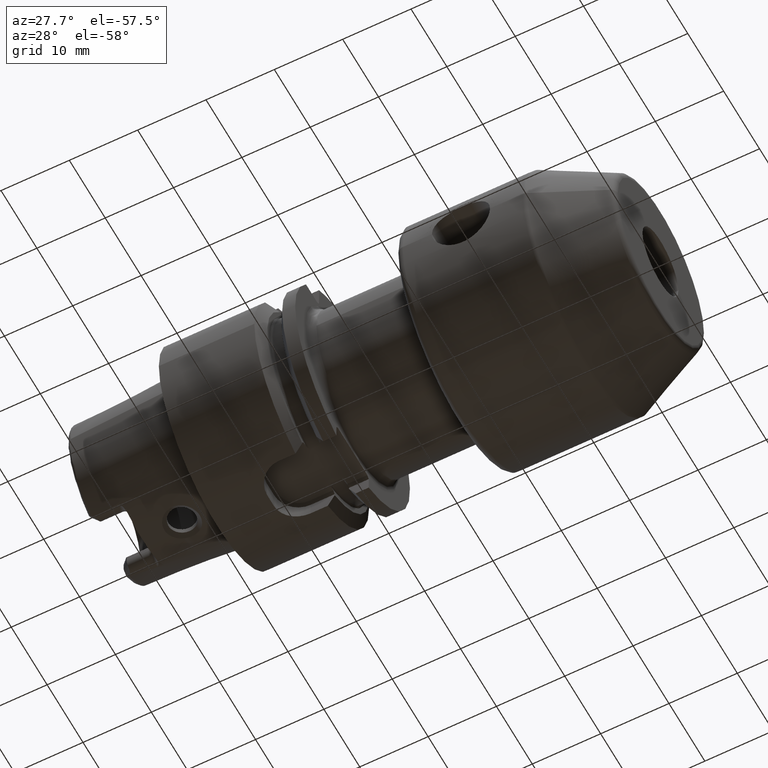
[diagram: clean part render]
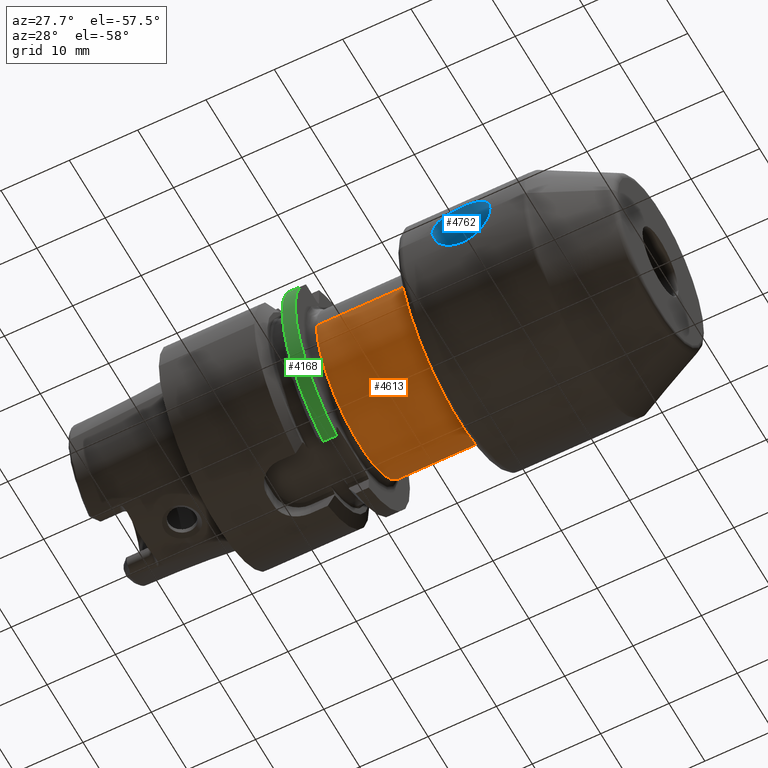
[diagram: same view with three faces highlighted in distinct colors, each labeled with its STEP entity id]
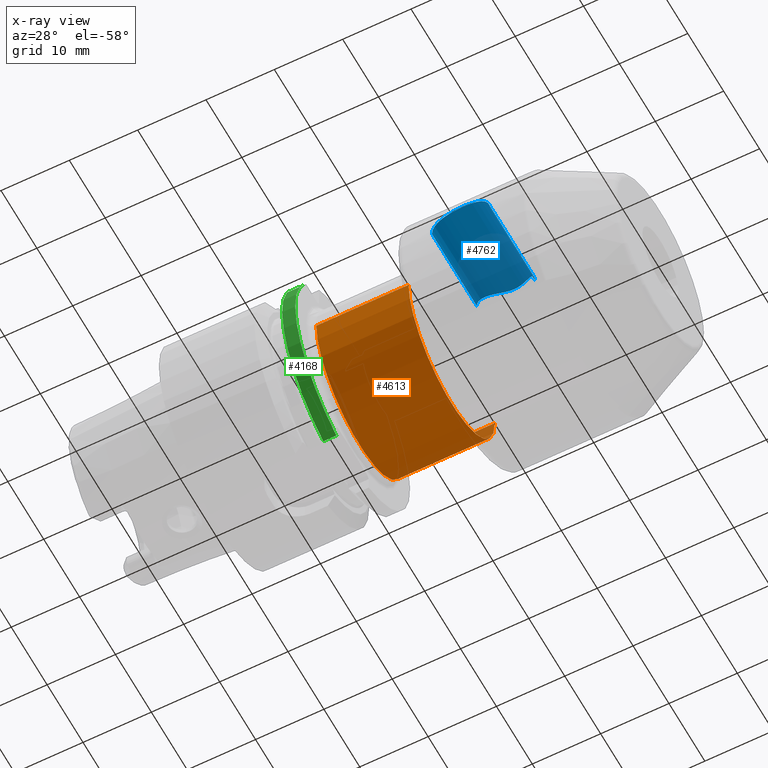
[diagram: x-ray of the same camera — body ghosted, the three highlighted faces saturated]
A machine part, auxiliary view with three faces highlighted in distinct colors.
The next image is the same camera in x-ray (body ghosted, the three faces saturated) — at least one of them is partly hidden behind the body in this view.
Their STEP definitions:

[orange] entity #4613 — the highlighted cylindrical surface (partial cylindrical patch) has radius 12 mm, axis along (1, 0, 0).
#1297=CARTESIAN_POINT('',(2.095E1,0.E0,0.E0));
#1298=DIRECTION('',(1.E0,0.E0,0.E0));
#1299=DIRECTION('',(0.E0,-1.E0,0.E0));
#1300=AXIS2_PLACEMENT_3D('',#1297,#1298,#1299);
#1326=CARTESIAN_POINT('',(3.445E1,0.E0,0.E0));
#1327=DIRECTION('',(-1.E0,0.E0,0.E0));
#1328=DIRECTION('',(0.E0,1.E0,0.E0));
#1329=AXIS2_PLACEMENT_3D('',#1326,#1327,#1328);
#1331=DIRECTION('',(1.E0,0.E0,1.113213816396E-13));
#1332=VECTOR('',#1331,1.35E1);
#1333=CARTESIAN_POINT('',(2.095E1,1.2E1,-7.247881522574E-13));
#1334=LINE('',#1333,#1332);
#1335=DIRECTION('',(1.E0,0.E0,-9.335299317120E-14));
#1336=VECTOR('',#1335,1.35E1);
#1337=CARTESIAN_POINT('',(2.095E1,-1.2E1,4.815005691993E-13));
#1338=LINE('',#1337,#1336);
#3360=CARTESIAN_POINT('',(3.445E1,1.2E1,0.E0));
#3361=CARTESIAN_POINT('',(3.445E1,-1.2E1,0.E0));
#3362=VERTEX_POINT('',#3360);
#3363=VERTEX_POINT('',#3361);
#3364=CARTESIAN_POINT('',(2.095E1,1.2E1,-7.247881522574E-13));
#3365=VERTEX_POINT('',#3364);
#3366=CARTESIAN_POINT('',(2.095E1,-1.2E1,4.815005691993E-13));
#3367=VERTEX_POINT('',#3366);
#4599=CARTESIAN_POINT('',(1.9175E1,0.E0,0.E0));
#4600=DIRECTION('',(1.E0,0.E0,0.E0));
#4601=DIRECTION('',(0.E0,-1.E0,0.E0));
#4602=AXIS2_PLACEMENT_3D('',#4599,#4600,#4601);
#4603=CYLINDRICAL_SURFACE('',#4602,1.2E1);
#4605=ORIENTED_EDGE('',*,*,#4604,.F.);
#4607=ORIENTED_EDGE('',*,*,#4606,.F.);
#4608=ORIENTED_EDGE('',*,*,#4586,.F.);
#4610=ORIENTED_EDGE('',*,*,#4609,.T.);
#4611=EDGE_LOOP('',(#4605,#4607,#4608,#4610));
#4612=FACE_OUTER_BOUND('',#4611,.F.);
#4613=ADVANCED_FACE('',(#4612),#4603,.T.);
#1301=CIRCLE('',#1300,1.2E1);
#1330=CIRCLE('',#1329,1.2E1);
#4586=EDGE_CURVE('',#3367,#3365,#1301,.T.);
#4604=EDGE_CURVE('',#3362,#3363,#1330,.T.);
#4606=EDGE_CURVE('',#3365,#3362,#1334,.T.);
#4609=EDGE_CURVE('',#3367,#3363,#1338,.T.);

[blue] entity #4762 — the highlighted cylindrical surface (edge-blend (fillet) strip) has radius 4.25 mm, axis along (0, -1, 0).
#1399=CARTESIAN_POINT('',(4.075E1,-1.75E1,0.E0));
#1400=CARTESIAN_POINT('',(4.075E1,-1.75E1,2.238200981112E-1));
#1401=CARTESIAN_POINT('',(4.078490845288E1,-1.749147352198E1,
6.649746198311E-1));
#1402=CARTESIAN_POINT('',(4.093972877032E1,-1.745452976195E1,1.313042696130E0));
#1403=CARTESIAN_POINT('',(4.119249572327E1,-1.739702710240E1,1.926565249608E0));
#1404=CARTESIAN_POINT('',(4.153753189600E1,-1.732420486610E1,2.494256760639E0));
#1405=CARTESIAN_POINT('',(4.196873025766E1,-1.724252864089E1,3.003785367397E0));
#1406=CARTESIAN_POINT('',(4.247683461268E1,-1.715976654974E1,3.441983169724E0));
#1407=CARTESIAN_POINT('',(4.305211064045E1,-1.708398085291E1,3.797439016129E0));
#1408=CARTESIAN_POINT('',(4.367481421244E1,-1.702375927884E1,4.056639453514E0));
#1409=CARTESIAN_POINT('',(4.432425499245E1,-1.698528968874E1,4.213458501650E0));
#1410=CARTESIAN_POINT('',(4.498663012564E1,-1.697174863109E1,4.267214862078E0));
#1411=CARTESIAN_POINT('',(4.564984038479E1,-1.698426344996E1,4.217558484278E0));
#1412=CARTESIAN_POINT('',(4.630022641159E1,-1.702182442350E1,4.064680258943E0));
#1413=CARTESIAN_POINT('',(4.692372100698E1,-1.708122803835E1,3.809676550750E0));
#1414=CARTESIAN_POINT('',(4.750126693591E1,-1.715651553129E1,3.458056972995E0));
#1415=CARTESIAN_POINT('',(4.801512342415E1,-1.723964039340E1,3.020367671263E0));
#1416=CARTESIAN_POINT('',(4.845210387265E1,-1.732209858359E1,2.509036982643E0));
#1417=CARTESIAN_POINT('',(4.880175110315E1,-1.739574786467E1,1.938397258094E0));
#1418=CARTESIAN_POINT('',(4.905765332091E1,-1.745391176336E1,1.321792059647E0));
#1419=CARTESIAN_POINT('',(4.921457321980E1,-1.749134613148E1,
6.697506275513E-1));
#1420=CARTESIAN_POINT('',(4.925E1,-1.75E1,2.254931914522E-1));
#1421=CARTESIAN_POINT('',(4.925E1,-1.75E1,0.E0));
#1474=DIRECTION('',(0.E0,-1.E0,0.E0));
#1475=VECTOR('',#1474,1.25E1);
#1476=CARTESIAN_POINT('',(4.925E1,-5.E0,0.E0));
#1477=LINE('',#1476,#1475);
#1478=DIRECTION('',(0.E0,-1.E0,0.E0));
#1479=VECTOR('',#1478,1.25E1);
#1480=CARTESIAN_POINT('',(4.075E1,-5.E0,0.E0));
#1481=LINE('',#1480,#1479);
#1482=CARTESIAN_POINT('',(4.925E1,-5.E0,0.E0));
#1483=CARTESIAN_POINT('',(4.925E1,-5.E0,1.815231632052E-1));
#1484=CARTESIAN_POINT('',(4.922753942568E1,-4.980876202597E0,
5.555779512711E-1));
#1485=CARTESIAN_POINT('',(4.910367608830E1,-4.875973264645E0,1.162709527970E0));
#1486=CARTESIAN_POINT('',(4.889276104278E1,-4.699412440544E0,1.742219659120E0));
#1487=CARTESIAN_POINT('',(4.860360459959E1,-4.462304330231E0,2.278483485573E0));
#1488=CARTESIAN_POINT('',(4.827083695636E1,-4.197599723295E0,2.732047469683E0));
#1489=CARTESIAN_POINT('',(4.789141048054E1,-3.908025980309E0,3.131554995498E0));
#1490=CARTESIAN_POINT('',(4.744584997574E1,-3.588855035002E0,3.491962130207E0));
#1491=CARTESIAN_POINT('',(4.693884504652E1,-3.261165955804E0,3.797751193648E0));
#1492=CARTESIAN_POINT('',(4.639634527950E1,-2.968872733562E0,4.027080296440E0));
#1493=CARTESIAN_POINT('',(4.589044890393E1,-2.767441984442E0,4.165554975058E0));
#1494=CARTESIAN_POINT('',(4.541639953156E1,-2.653743364482E0,4.237880053025E0));
#1495=CARTESIAN_POINT('',(4.497040068468E1,-2.621738332689E0,4.257460511927E0));
#1496=CARTESIAN_POINT('',(4.452513565003E1,-2.663773564635E0,4.231664554728E0));
#1497=CARTESIAN_POINT('',(4.405562024873E1,-2.785752416386E0,4.153469214212E0));
#1498=CARTESIAN_POINT('',(4.355747445826E1,-2.991490113915E0,4.010403805962E0));
#1499=CARTESIAN_POINT('',(4.302633144632E1,-3.282531182596E0,3.779194307665E0));
#1500=CARTESIAN_POINT('',(4.253157571124E1,-3.604579900188E0,3.475412639825E0));
#1501=CARTESIAN_POINT('',(4.209588711372E1,-3.917570082651E0,3.119248384282E0));
#1502=CARTESIAN_POINT('',(4.172298737360E1,-4.202472899423E0,2.724178872059E0));
#1503=CARTESIAN_POINT('',(4.139443229244E1,-4.463913301769E0,2.274973071396E0));
#1504=CARTESIAN_POINT('',(4.110694540062E1,-4.699658979808E0,1.741360544848E0));
#1505=CARTESIAN_POINT('',(4.089627720437E1,-4.876012517171E0,1.162533528621E0));
#1506=CARTESIAN_POINT('',(4.077243143603E1,-4.980901009128E0,
5.553417274422E-1));
#1507=CARTESIAN_POINT('',(4.075E1,-5.E0,1.814501959378E-1));
#1508=CARTESIAN_POINT('',(4.075E1,-5.E0,0.E0));
#3324=VERTEX_POINT('',#1399);
#3325=VERTEX_POINT('',#1421);
#3326=VERTEX_POINT('',#1482);
#3327=VERTEX_POINT('',#1508);
#4750=CARTESIAN_POINT('',(4.5E1,3.556340512410E0,0.E0));
#4751=DIRECTION('',(0.E0,-1.E0,0.E0));
#4752=DIRECTION('',(-1.E0,0.E0,0.E0));
#4753=AXIS2_PLACEMENT_3D('',#4750,#4751,#4752);
#4754=CYLINDRICAL_SURFACE('',#4753,4.25E0);
#4755=ORIENTED_EDGE('',*,*,#4699,.T.);
#4756=ORIENTED_EDGE('',*,*,#4745,.F.);
#4758=ORIENTED_EDGE('',*,*,#4757,.T.);
#4759=ORIENTED_EDGE('',*,*,#4741,.T.);
#4760=EDGE_LOOP('',(#4755,#4756,#4758,#4759));
#4761=FACE_OUTER_BOUND('',#4760,.F.);
#4762=ADVANCED_FACE('',(#4761),#4754,.F.);
#1422=B_SPLINE_CURVE_WITH_KNOTS('',3,(#1399,#1400,#1401,#1402,#1403,#1404,#1405,
#1406,#1407,#1408,#1409,#1410,#1411,#1412,#1413,#1414,#1415,#1416,#1417,#1418,
#1419,#1420,#1421),.UNSPECIFIED.,.F.,.F.,(4,1,1,1,1,1,1,1,1,1,1,1,1,1,1,1,1,1,1,
1,4),(0.E0,5.E-2,1.E-1,1.5E-1,2.E-1,2.5E-1,3.E-1,3.5E-1,4.E-1,4.5E-1,5.E-1,
5.5E-1,6.E-1,6.5E-1,7.E-1,7.5E-1,8.E-1,8.5E-1,9.E-1,9.5E-1,1.E0),.UNSPECIFIED.);
#1509=B_SPLINE_CURVE_WITH_KNOTS('',3,(#1482,#1483,#1484,#1485,#1486,#1487,#1488,
#1489,#1490,#1491,#1492,#1493,#1494,#1495,#1496,#1497,#1498,#1499,#1500,#1501,
#1502,#1503,#1504,#1505,#1506,#1507,#1508),.UNSPECIFIED.,.F.,.F.,(4,1,1,1,1,1,1,
1,1,1,1,1,1,1,1,1,1,1,1,1,1,1,1,1,4),(0.E0,4.166666666667E-2,8.333333333333E-2,
1.25E-1,1.666666666667E-1,2.083333333333E-1,2.5E-1,2.916666666667E-1,
3.333333333333E-1,3.75E-1,4.166666666667E-1,4.583333333333E-1,5.E-1,
5.416666666667E-1,5.833333333333E-1,6.25E-1,6.666666666667E-1,7.083333333333E-1,
7.5E-1,7.916666666667E-1,8.333333333333E-1,8.75E-1,9.166666666667E-1,
9.583333333333E-1,1.E0),.UNSPECIFIED.);
#4699=EDGE_CURVE('',#3324,#3325,#1422,.T.);
#4741=EDGE_CURVE('',#3327,#3324,#1481,.T.);
#4745=EDGE_CURVE('',#3326,#3325,#1477,.T.);
#4757=EDGE_CURVE('',#3326,#3327,#1509,.T.);

[green] entity #4168 — the highlighted cylindrical surface (partial cylindrical patch) has radius 16 mm, axis along (1, 0, 0).
#803=DIRECTION('',(1.E0,0.E0,0.E0));
#804=VECTOR('',#803,1.914840301107E0);
#805=CARTESIAN_POINT('',(1.803515969889E1,-4.5145E0,-1.534989543124E1));
#806=LINE('',#805,#804);
#807=CARTESIAN_POINT('',(1.803515969889E1,0.E0,0.E0));
#808=DIRECTION('',(-1.E0,0.E0,0.E0));
#809=DIRECTION('',(0.E0,-2.8215625E-1,-9.593684644525E-1));
#810=AXIS2_PLACEMENT_3D('',#807,#808,#809);
#812=DIRECTION('',(1.E0,0.E0,0.E0));
#813=VECTOR('',#812,1.914840301107E0);
#814=CARTESIAN_POINT('',(1.803515969889E1,-1.298373983103E1,9.35E0));
#815=LINE('',#814,#813);
#816=CARTESIAN_POINT('',(1.995E1,0.E0,0.E0));
#817=DIRECTION('',(1.E0,0.E0,0.E0));
#818=DIRECTION('',(0.E0,-8.114837394397E-1,5.84375E-1));
#819=AXIS2_PLACEMENT_3D('',#816,#817,#818);
#1830=CARTESIAN_POINT('',(1.803515969889E1,-4.5145E0,-1.534989543124E1));
#1902=CARTESIAN_POINT('',(1.803515969889E1,-1.298373983103E1,9.35E0));
#3080=VERTEX_POINT('',#1830);
#3130=VERTEX_POINT('',#1902);
#3336=CARTESIAN_POINT('',(1.995E1,-1.298373983103E1,9.35E0));
#3338=VERTEX_POINT('',#3336);
#3389=CARTESIAN_POINT('',(1.995E1,-4.5145E0,-1.534989543124E1));
#3390=VERTEX_POINT('',#3389);
#4153=CARTESIAN_POINT('',(-1.76925E1,0.E0,0.E0));
#4154=DIRECTION('',(1.E0,0.E0,0.E0));
#4155=DIRECTION('',(0.E0,-1.E0,0.E0));
#4156=AXIS2_PLACEMENT_3D('',#4153,#4154,#4155);
#4157=CYLINDRICAL_SURFACE('',#4156,1.6E1);
#4159=ORIENTED_EDGE('',*,*,#4158,.F.);
#4161=ORIENTED_EDGE('',*,*,#4160,.T.);
#4163=ORIENTED_EDGE('',*,*,#4162,.T.);
#4165=ORIENTED_EDGE('',*,*,#4164,.T.);
#4166=EDGE_LOOP('',(#4159,#4161,#4163,#4165));
#4167=FACE_OUTER_BOUND('',#4166,.F.);
#4168=ADVANCED_FACE('',(#4167),#4157,.T.);
#811=CIRCLE('',#810,1.6E1);
#820=CIRCLE('',#819,1.6E1);
#4158=EDGE_CURVE('',#3080,#3390,#806,.T.);
#4160=EDGE_CURVE('',#3080,#3130,#811,.T.);
#4162=EDGE_CURVE('',#3130,#3338,#815,.T.);
#4164=EDGE_CURVE('',#3338,#3390,#820,.T.);